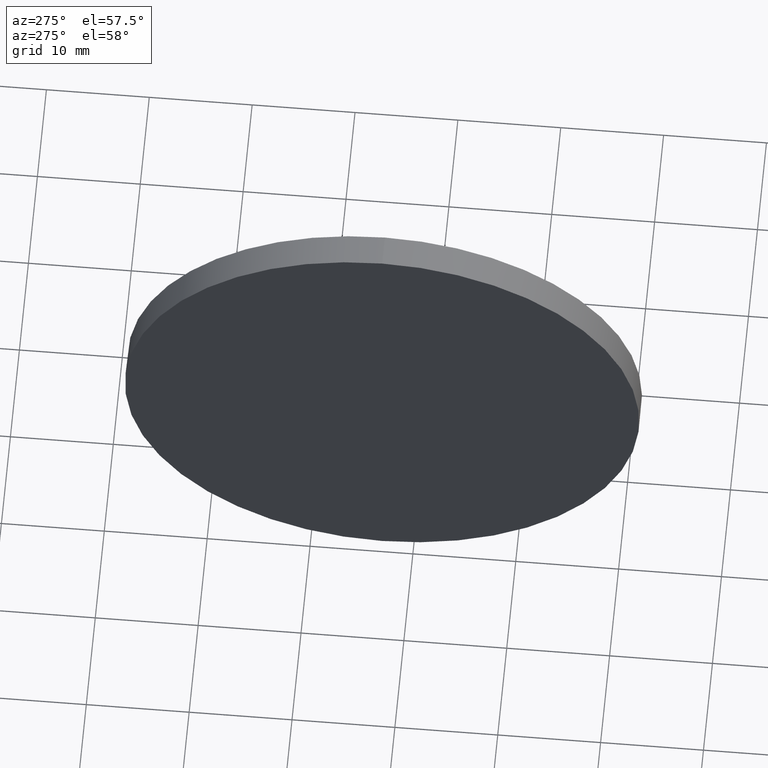
[diagram: clean part render]
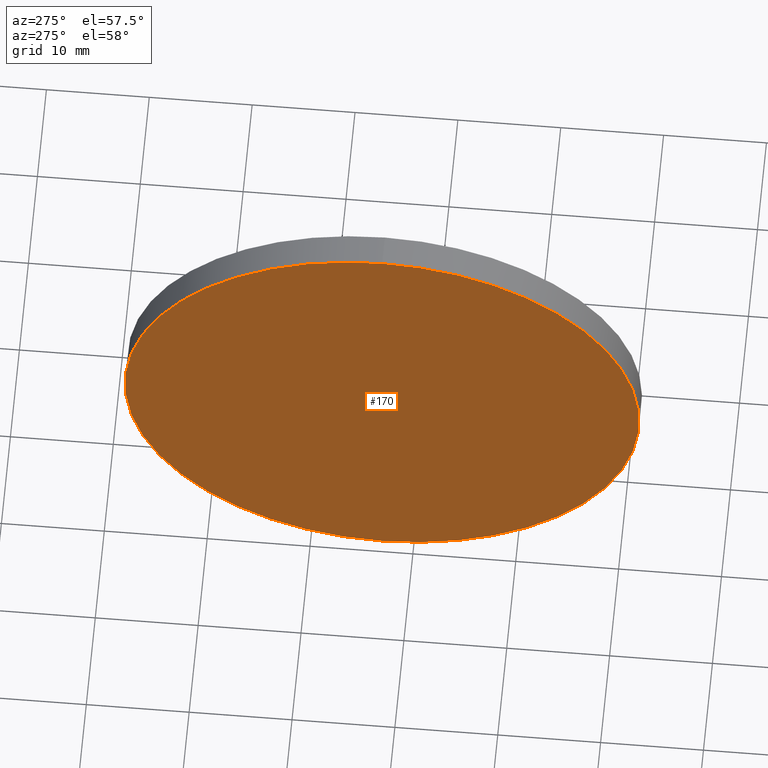
[diagram: same view with one face highlighted and labeled with its STEP entity id]
A machine part, auxiliary view. The second image highlights one B-rep face of the part: STEP entity #170.
In plain terms, the highlighted planar face has unit normal (1, 0, 0).
Its self-contained STEP definition (entity closure, byte-faithful):
#10 = DIRECTION ( 'NONE',  ( -1.000000000000000000, -0.0000000000000000000, -0.0000000000000000000 ) ) ;
#12 = CARTESIAN_POINT ( 'NONE',  ( 450.5393403652467400, 83.03950815417408600, 0.0000000000000000000 ) ) ;
#21 = VERTEX_POINT ( 'NONE', #29 ) ;
#22 = AXIS2_PLACEMENT_3D ( 'NONE', #47, #44, #68 ) ;
#29 = CARTESIAN_POINT ( 'NONE',  ( 450.5393403652467400, 83.03950815417408600, 24.99999999999999300 ) ) ;
#44 = DIRECTION ( 'NONE',  ( 1.000000000000000000, 0.0000000000000000000, 0.0000000000000000000 ) ) ;
#46 = CARTESIAN_POINT ( 'NONE',  ( 450.5393403652467400, 83.03950815417408600, 0.0000000000000000000 ) ) ;
#47 = CARTESIAN_POINT ( 'NONE',  ( 450.5393403652467400, 83.03950815417408600, 0.0000000000000000000 ) ) ;
#59 = CIRCLE ( 'NONE', #164, 24.99999999999999300 ) ;
#67 = EDGE_LOOP ( 'NONE', ( #86, #84 ) ) ;
#68 = DIRECTION ( 'NONE',  ( 0.0000000000000000000, 0.0000000000000000000, -1.000000000000000000 ) ) ;
#77 = FACE_OUTER_BOUND ( 'NONE', #67, .T. ) ;
#81 = DIRECTION ( 'NONE',  ( -1.000000000000000000, -0.0000000000000000000, -0.0000000000000000000 ) ) ;
#84 = ORIENTED_EDGE ( 'NONE', *, *, #186, .T. ) ;
#86 = ORIENTED_EDGE ( 'NONE', *, *, #132, .T. ) ;
#102 = CARTESIAN_POINT ( 'NONE',  ( 450.5393403652467400, 83.03950815417408600, -24.99999999999999300 ) ) ;
#128 = DIRECTION ( 'NONE',  ( 0.0000000000000000000, 0.0000000000000000000, 1.000000000000000000 ) ) ;
#132 = EDGE_CURVE ( 'NONE', #21, #184, #134, .T. ) ;
#134 = CIRCLE ( 'NONE', #155, 24.99999999999999300 ) ;
#155 = AXIS2_PLACEMENT_3D ( 'NONE', #46, #10, #182 ) ;
#164 = AXIS2_PLACEMENT_3D ( 'NONE', #12, #81, #128 ) ;
#170 = ADVANCED_FACE ( 'NONE', ( #77 ), #180, .F. ) ;
#180 = PLANE ( 'NONE',  #22 ) ;
#182 = DIRECTION ( 'NONE',  ( 0.0000000000000000000, 0.0000000000000000000, 1.000000000000000000 ) ) ;
#184 = VERTEX_POINT ( 'NONE', #102 ) ;
#186 = EDGE_CURVE ( 'NONE', #184, #21, #59, .T. ) ;